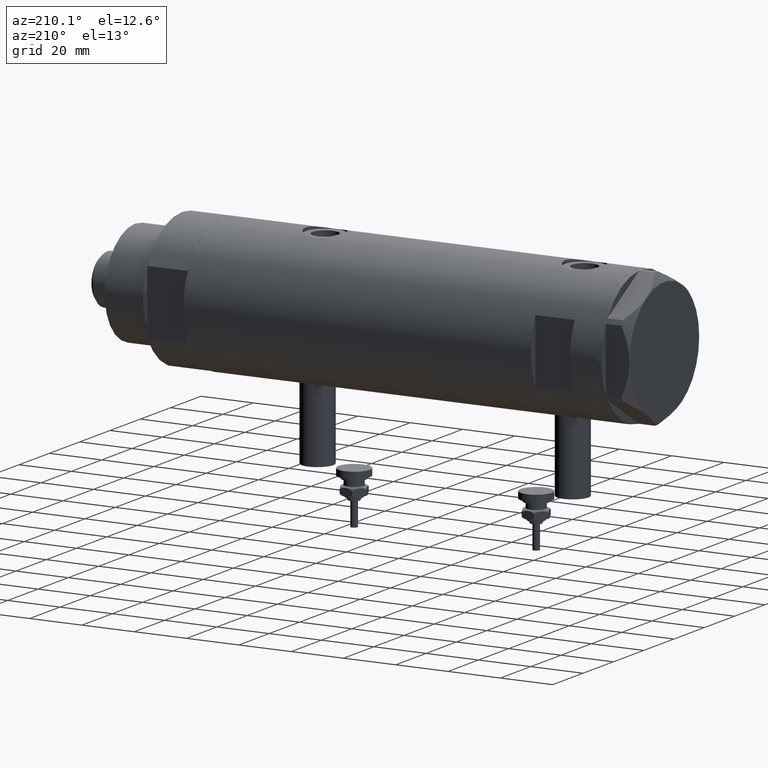
[diagram: clean part render]
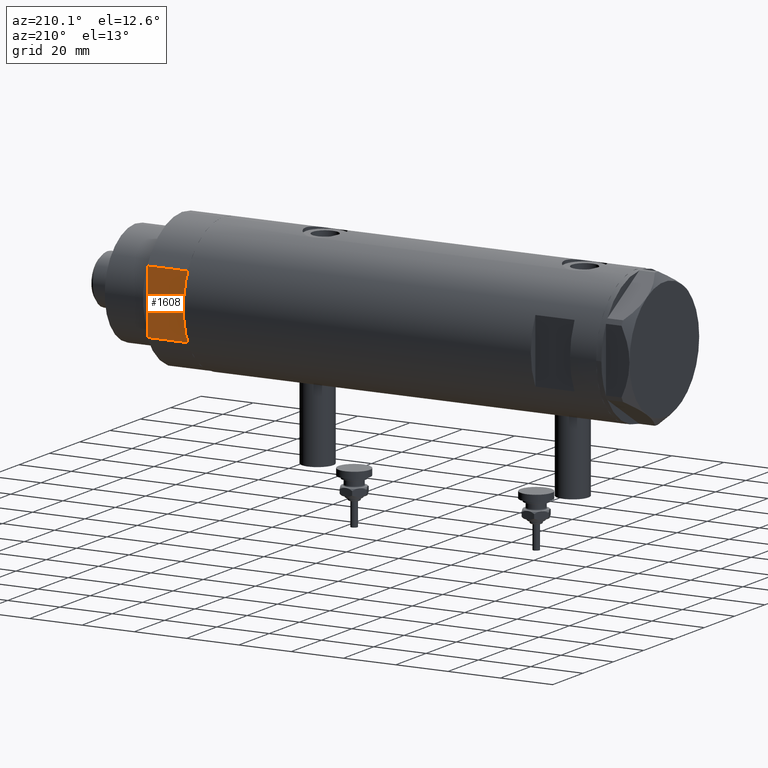
[diagram: same view with one face highlighted and labeled with its STEP entity id]
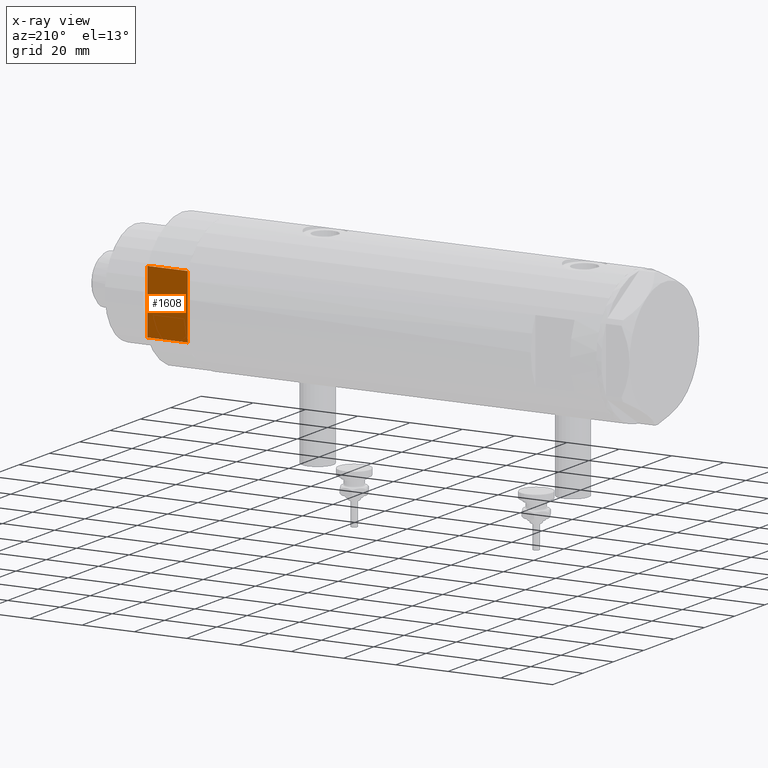
[diagram: x-ray of the same camera — body ghosted, the highlighted face saturated]
A machine part, auxiliary view. The second image highlights one B-rep face of the part: STEP entity #1608.
The next image is the same camera in x-ray: the body ghosted, the highlighted face saturated — about 0% of this face is hidden behind the body in this view.
In plain terms, the highlighted planar face has unit normal (0, -1, -0).
Its self-contained STEP definition (entity closure, byte-faithful):
#421 = CARTESIAN_POINT ( 'NONE',  ( -12.12435565298215145, 23.00000000000000355, 15.50000000000000000 ) ) ;
#588 = LINE ( 'NONE', #5002, #2561 ) ;
#742 = PLANE ( 'NONE',  #3279 ) ;
#988 = VERTEX_POINT ( 'NONE', #2069 ) ;
#1125 = VECTOR ( 'NONE', #5343, 1000.000000000000000 ) ;
#1195 = DIRECTION ( 'NONE',  ( 0.000000000000000000, -1.000000000000000000, 0.000000000000000000 ) ) ;
#1608 = ADVANCED_FACE ( 'NONE', ( #3149 ), #742, .F. ) ;
#1735 = EDGE_CURVE ( 'NONE', #988, #3377, #6209, .T. ) ;
#1803 = EDGE_CURVE ( 'NONE', #988, #3516, #5979, .T. ) ;
#2069 = CARTESIAN_POINT ( 'NONE',  ( -12.12435565298215145, 23.00000000000000355, 0.000000000000000000 ) ) ;
#2169 = CARTESIAN_POINT ( 'NONE',  ( 12.12435565298214080, 23.00000000000000355, 0.000000000000000000 ) ) ;
#2536 = ORIENTED_EDGE ( 'NONE', *, *, #5463, .T. ) ;
#2561 = VECTOR ( 'NONE', #3568, 1000.000000000000000 ) ;
#2626 = EDGE_CURVE ( 'NONE', #3516, #5550, #588, .T. ) ;
#2833 = CARTESIAN_POINT ( 'NONE',  ( -12.12435565298214613, 23.00000000000000355, 15.50000000000000000 ) ) ;
#3149 = FACE_OUTER_BOUND ( 'NONE', #6217, .T. ) ;
#3279 = AXIS2_PLACEMENT_3D ( 'NONE', #5579, #1195, #5096 ) ;
#3377 = VERTEX_POINT ( 'NONE', #2833 ) ;
#3430 = LINE ( 'NONE', #421, #5646 ) ;
#3516 = VERTEX_POINT ( 'NONE', #2169 ) ;
#3568 = DIRECTION ( 'NONE',  ( -0.000000000000000000, -0.000000000000000000, 1.000000000000000000 ) ) ;
#3828 = ORIENTED_EDGE ( 'NONE', *, *, #2626, .F. ) ;
#4166 = ORIENTED_EDGE ( 'NONE', *, *, #1803, .F. ) ;
#4771 = DIRECTION ( 'NONE',  ( -0.000000000000000000, -0.000000000000000000, 1.000000000000000000 ) ) ;
#4796 = DIRECTION ( 'NONE',  ( 1.000000000000000000, 0.000000000000000000, 0.000000000000000000 ) ) ;
#5002 = CARTESIAN_POINT ( 'NONE',  ( 12.12435565298215323, 23.00000000000000355, 0.000000000000000000 ) ) ;
#5096 = DIRECTION ( 'NONE',  ( 0.000000000000000000, -0.000000000000000000, -1.000000000000000000 ) ) ;
#5304 = VECTOR ( 'NONE', #4771, 1000.000000000000000 ) ;
#5306 = CARTESIAN_POINT ( 'NONE',  ( -12.12435565298215145, 23.00000000000000355, 0.000000000000000000 ) ) ;
#5343 = DIRECTION ( 'NONE',  ( 1.000000000000000000, 0.000000000000000000, 0.000000000000000000 ) ) ;
#5443 = CARTESIAN_POINT ( 'NONE',  ( -12.12435565298215145, 23.00000000000000355, 0.000000000000000000 ) ) ;
#5463 = EDGE_CURVE ( 'NONE', #3377, #5550, #3430, .T. ) ;
#5550 = VERTEX_POINT ( 'NONE', #6239 ) ;
#5579 = CARTESIAN_POINT ( 'NONE',  ( -12.12435565298215145, 23.00000000000000355, 0.000000000000000000 ) ) ;
#5646 = VECTOR ( 'NONE', #4796, 1000.000000000000000 ) ;
#5979 = LINE ( 'NONE', #5443, #1125 ) ;
#6183 = ORIENTED_EDGE ( 'NONE', *, *, #1735, .T. ) ;
#6209 = LINE ( 'NONE', #5306, #5304 ) ;
#6217 = EDGE_LOOP ( 'NONE', ( #2536, #3828, #4166, #6183 ) ) ;
#6239 = CARTESIAN_POINT ( 'NONE',  ( 12.12435565298214790, 23.00000000000000355, 15.50000000000000000 ) ) ;